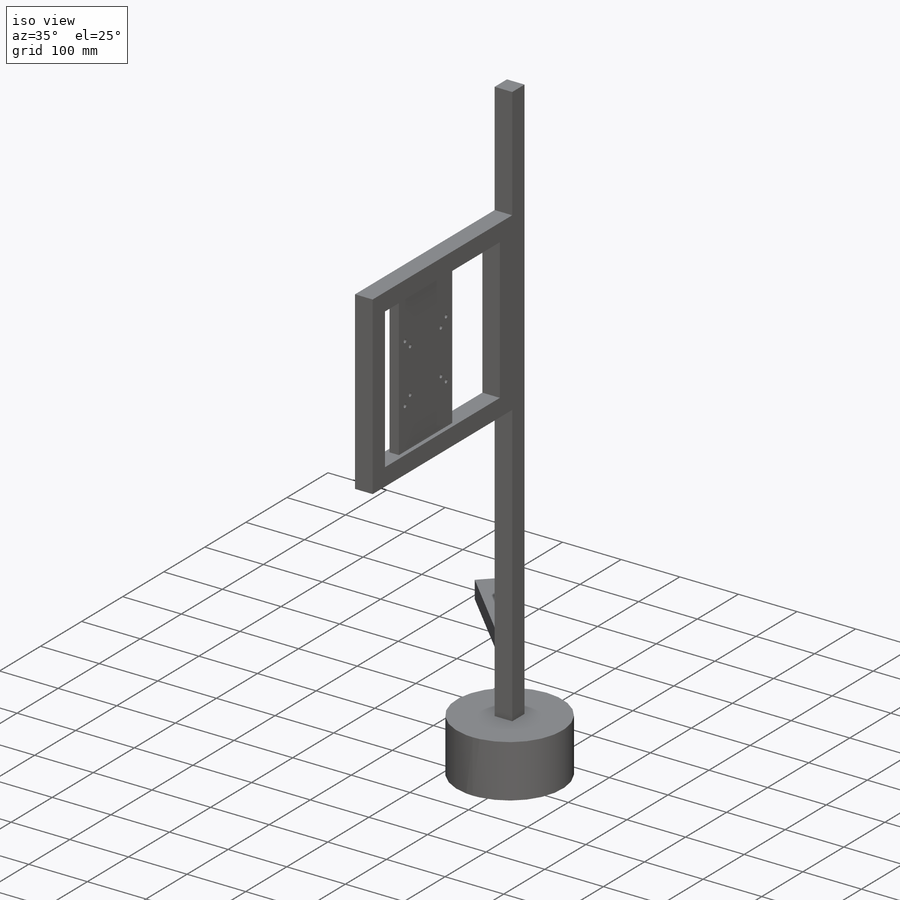
[diagram: iso view]
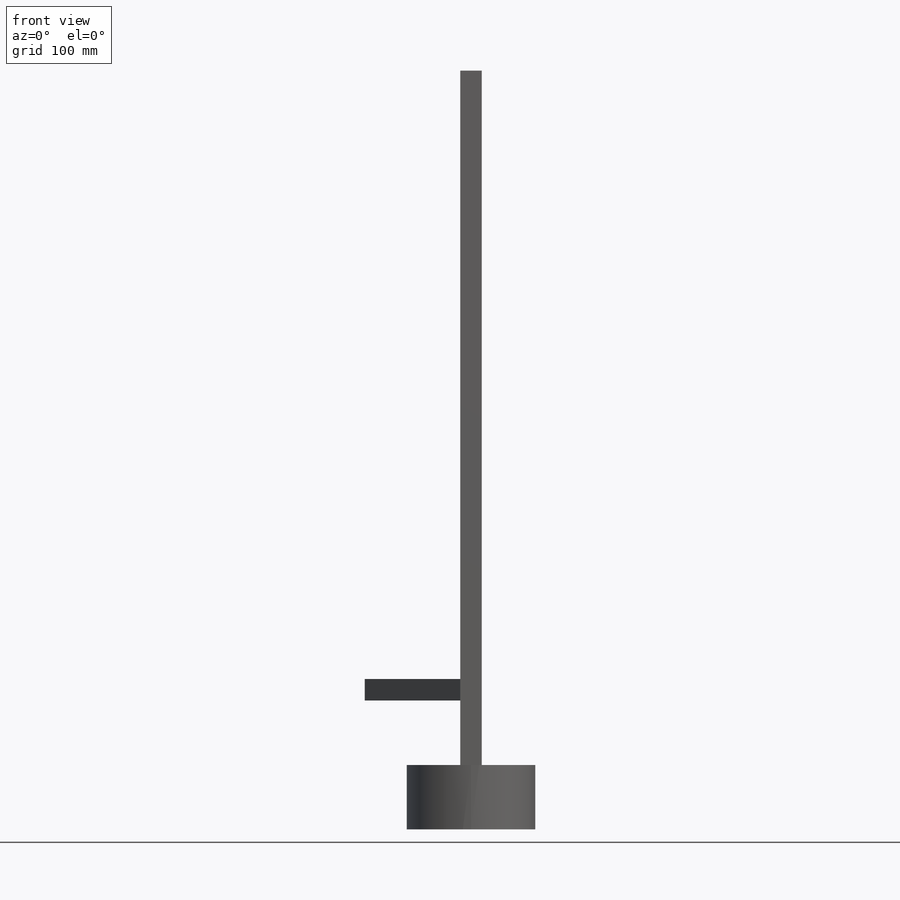
[diagram: front view]
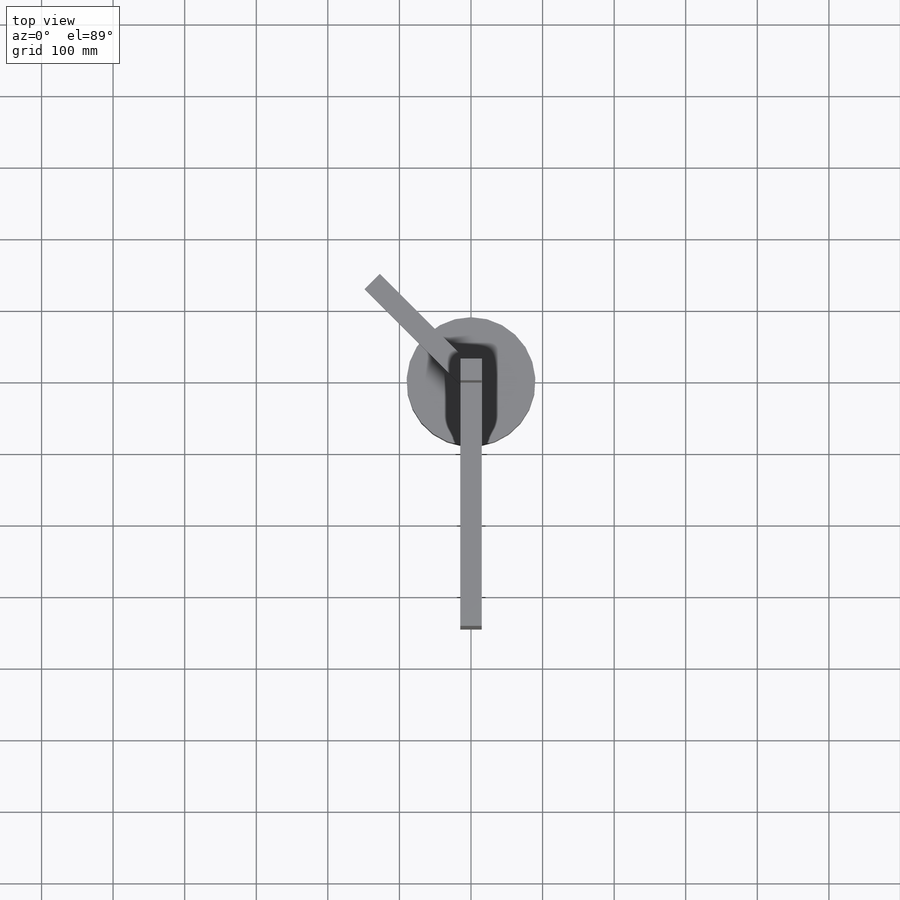
[diagram: top view]
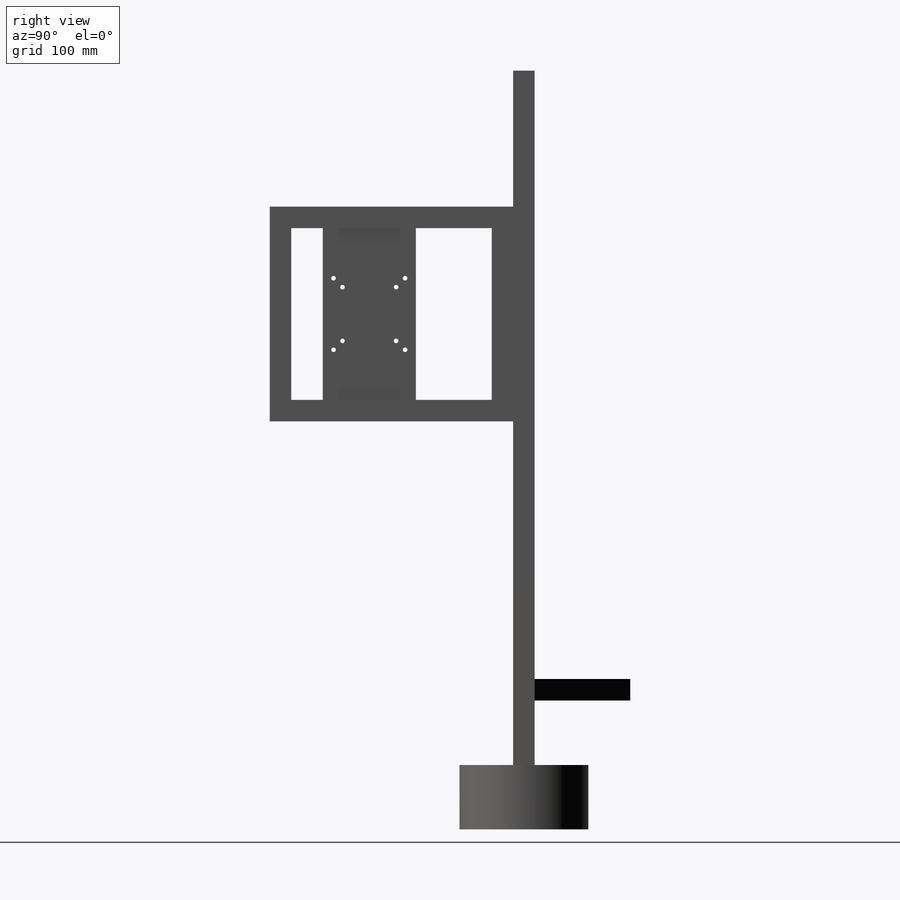
[diagram: right view]
SOLIDWORKS PART (.sldprt)
format: sldprt  version: not decoded by parser v0  size: 256,000 bytes
history: native  units: mm
features: sketch x7, extrude x5, plane x4, cut_extrude x2, material x1 (+8 scaffold rows collapsed)
feature tree (27):
  scaffold x8  (default folders/planes/origin — collapsed)
  material  "Material <not specified>"
  plane  "前基準面"
  plane  "上基準面"
  plane  "右基準面"
  sketch  "草圖1"  dims[D1=180.0mm]
  extrude  "填料-伸長1"  Depth=90mm
  sketch  "草圖2"  dims[D1=30.0mm D2=30.0mm]
  extrude  "填料-伸長2"  Depth=970mm
  plane  "平面1"
  sketch  "草圖3"  dims[D1=30.0mm D2=30.0mm D3=105.0mm]
  extrude  "填料-伸長3"  Depth=200mm
  sketch  "草圖5"  dims[D1=400.0mm D2=300.0mm D4=480.0mm D3=30.0mm]
  extrude  "填料-伸長5"  Depth=30mm
  sketch  "草圖7"  dims[c1.D3=6.35mm c1.D6=6.35mm c1.D8=6.35mm c1.D1=65.0mm c1.D2=65.0mm c1.D4=37.5mm c1.D5=37.5mm c1.D7=50.0mm c2.D8=50.0mm]
  extrude  "填料-伸長6"  [1 undecoded]
  sketch  "草圖8"
  cut_extrude  "除料-伸長1"  Depth=7mm
  sketch  "草圖9"
  cut_extrude  "除料-伸長2"  Depth=7mm
decode coverage: 11 of 14 modeling features carry decoded parameters
note: 1 parameter value undecoded
note: suppression state not decoded; provenance and decode notes live in map.json
